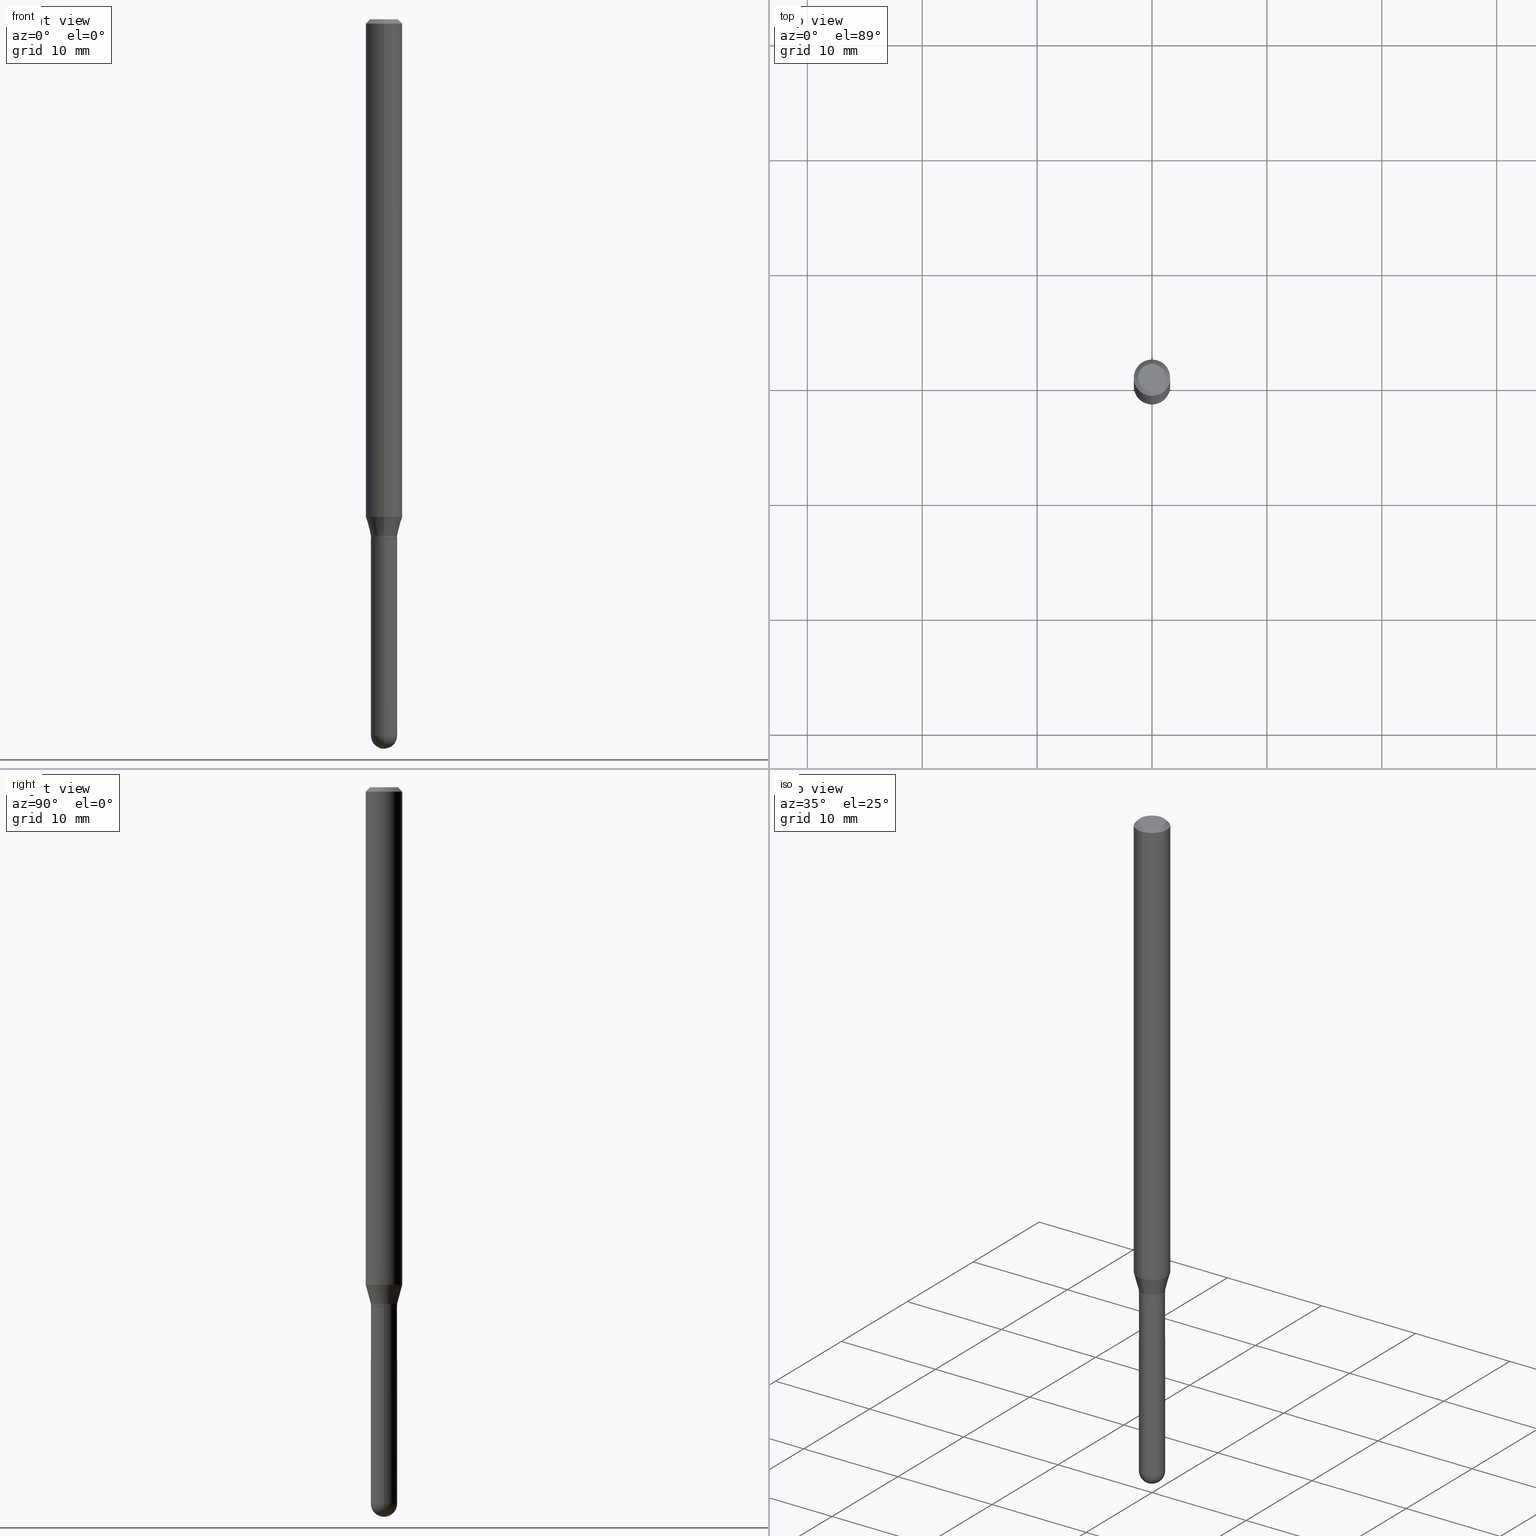
[diagram: canonical four-view strip — front | top / right | iso, engineering-drawing reading convention]
A machine part, canonical four-view strip (front | top / right | iso — engineering-drawing reading convention). The complete STEP part file that produces these views, byte-faithful:
ISO-10303-21;
HEADER;
FILE_DESCRIPTION (( 'STEP AP203' ),
    '1' );
FILE_NAME ('00999.STEP',
    '2024-03-07T19:37:29',
    ( '' ),
    ( '' ),
    'SwSTEP 2.0',
    'SolidWorks 2023',
    '' );
FILE_SCHEMA (( 'CONFIG_CONTROL_DESIGN' ));
ENDSEC;

DATA;
#1 = VERTEX_POINT ( 'NONE', #39 ) ;
#2 = CC_DESIGN_PERSON_AND_ORGANIZATION_ASSIGNMENT ( #205, #375, ( #356 ) ) ;
#3 = DIRECTION ( 'NONE',  ( -6.982962677686266711E-15, -1.000000000000000000, 3.491581986293447763E-15 ) ) ;
#4 = DIRECTION ( 'NONE',  ( -6.982962677686265922E-15, -1.000000000000000000, 3.491581986293447369E-15 ) ) ;
#5 = ADVANCED_FACE ( 'NONE', ( #226 ), #150, .F. ) ;
#6 = CIRCLE ( 'NONE', #136, 0.04449999999999999789 ) ;
#7 = LINE ( 'NONE', #360, #388 ) ;
#8 = DIRECTION ( 'NONE',  ( -1.807323732225336056E-15, -0.2588190451025190186, 0.9659258262890687563 ) ) ;
#9 = ORIENTED_EDGE ( 'NONE', *, *, #158, .F. ) ;
#10 = APPROVAL_DATE_TIME ( #398, #307 ) ;
#11 = ADVANCED_FACE ( 'NONE', ( #189 ), #270, .T. ) ;
#12 = DIRECTION ( 'NONE',  ( -2.445398524446230422E-29, 3.491581986293447369E-15, 1.000000000000000000 ) ) ;
#13 = DIRECTION ( 'NONE',  ( -4.851104656540964275E-15, -0.7071067811865500152, -0.7071067811865450192 ) ) ;
#14 = DIRECTION ( 'NONE',  ( -6.982962677686265922E-15, -1.000000000000000000, 3.491581986293447369E-15 ) ) ;
#15 = PERSON_AND_ORGANIZATION ( #448, #42 ) ;
#16 = DIRECTION ( 'NONE',  ( -6.982962677686265922E-15, -1.000000000000000000, 6.138984255425310648E-15 ) ) ;
#17 = EDGE_CURVE ( 'NONE', #337, #437, #338, .T. ) ;
#18 = CIRCLE ( 'NONE', #92, 0.04500000000000001221 ) ;
#19 = COORDINATED_UNIVERSAL_TIME_OFFSET ( 5, 0, .BEHIND. ) ;
#20 = SECURITY_CLASSIFICATION ( '', '', #182 ) ;
#21 = CARTESIAN_POINT ( 'NONE',  ( 3.316907271900976096E-16, 0.04749999999999999362, -1.702779137679096412E-16 ) ) ;
#22 = ORIENTED_EDGE ( 'NONE', *, *, #219, .T. ) ;
#23 = CARTESIAN_POINT ( 'NONE',  ( 4.328355388269827761E-29, -6.180100115739401259E-15, -1.770000000000000018 ) ) ;
#24 = COORDINATED_UNIVERSAL_TIME_OFFSET ( 5, 0, .BEHIND. ) ;
#25 = EDGE_CURVE ( 'NONE', #181, #304, #349, .T. ) ;
#26 = AXIS2_PLACEMENT_3D ( 'NONE', #492, #333, #253 ) ;
#27 = CIRCLE ( 'NONE', #465, 0.04500000000000001221 ) ;
#28 = ADVANCED_FACE ( 'NONE', ( #389 ), #391, .T. ) ;
#29 = VERTEX_POINT ( 'NONE', #312 ) ;
#30 = DIMENSIONAL_EXPONENTS ( 1.000000000000000000, 0.000000000000000000, 0.000000000000000000, 0.000000000000000000, 0.000000000000000000, 0.000000000000000000, 0.000000000000000000 ) ;
#31 = VERTEX_POINT ( 'NONE', #78 ) ;
#32 = EDGE_CURVE ( 'NONE', #385, #72, #230, .T. ) ;
#33 = CONICAL_SURFACE ( 'NONE', #319, 0.04449999999999999789, 0.7853981633969275844 ) ;
#34 = DIRECTION ( 'NONE',  ( -6.982962677686265133E-15, -1.000000000000000000, 3.491581986293447369E-15 ) ) ;
#35 = ORIENTED_EDGE ( 'NONE', *, *, #32, .F. ) ;
#36 = EDGE_LOOP ( 'NONE', ( #394, #203, #347, #296, #431 ) ) ;
#37 = VECTOR ( 'NONE', #127, 39.37007874015748143 ) ;
#38 = ADVANCED_FACE ( 'NONE', ( #40 ), #145, .T. ) ;
#39 = CARTESIAN_POINT ( 'NONE',  ( -3.107418391569952919E-16, -0.04450000000000620820, -1.780000000000000027 ) ) ;
#40 = FACE_OUTER_BOUND ( 'NONE', #44, .T. ) ;
#41 = DIRECTION ( 'NONE',  ( -6.982962677686265922E-15, -1.000000000000000000, 6.070773319253965595E-15 ) ) ;
#42 = ORGANIZATION ( 'UNSPECIFIED', 'UNSPECIFIED', '' ) ;
#43 = CARTESIAN_POINT ( 'NONE',  ( 3.197442310920897904E-16, 0.04499999999999402395, -1.770000000000000240 ) ) ;
#44 = EDGE_LOOP ( 'NONE', ( #74, #104, #472, #120 ) ) ;
#45 = APPROVAL_DATE_TIME ( #173, #195 ) ;
#46 = CYLINDRICAL_SURFACE ( 'NONE', #168, 0.04500000000000000527 ) ;
#47 = CARTESIAN_POINT ( 'NONE',  ( 0.000000000000000000, 0.000000000000000000, 0.000000000000000000 ) ) ;
#48 = CALENDAR_DATE ( 2024, 7, 3 ) ;
#49 = CARTESIAN_POINT ( 'NONE',  ( 0.000000000000000000, 0.000000000000000000, 0.000000000000000000 ) ) ;
#50 = LINE ( 'NONE', #476, #251 ) ;
#51 = PERSON_AND_ORGANIZATION ( #448, #42 ) ;
#52 = EDGE_CURVE ( 'NONE', #31, #415, #318, .T. ) ;
#53 = CIRCLE ( 'NONE', #249, 0.04749999999999999362 ) ;
#54 = AXIS2_PLACEMENT_3D ( 'NONE', #499, #301, #460 ) ;
#55 = CARTESIAN_POINT ( 'NONE',  ( 5.999777670883203691E-29, -8.577097597456086203E-15, -2.455000000000000071 ) ) ;
#56 = EDGE_LOOP ( 'NONE', ( #59, #299, #152, #357 ) ) ;
#57 = EDGE_CURVE ( 'NONE', #385, #429, #65, .T. ) ;
#58 = CARTESIAN_POINT ( 'NONE',  ( 3.197442310920445295E-16, 0.04499999999999992895, -1.571211893832048782E-16 ) ) ;
#59 = ORIENTED_EDGE ( 'NONE', *, *, #135, .F. ) ;
#60 = APPROVAL_DATE_TIME ( #498, #423 ) ;
#61 = ADVANCED_FACE ( 'NONE', ( #235 ), #46, .T. ) ;
#62 = DIRECTION ( 'NONE',  ( 6.982962677686265922E-15, 1.000000000000000000, -3.491581986293447369E-15 ) ) ;
#63 = LINE ( 'NONE', #139, #470 ) ;
#64 = ORIENTED_EDGE ( 'NONE', *, *, #311, .T. ) ;
#65 = CIRCLE ( 'NONE', #438, 0.06250000000000000000 ) ;
#66 = AXIS2_PLACEMENT_3D ( 'NONE', #23, #494, #297 ) ;
#67 = LINE ( 'NONE', #58, #471 ) ;
#68 = DIRECTION ( 'NONE',  ( -7.105427357600999492E-15, -1.000000000000000000, 0.000000000000000000 ) ) ;
#69 = ORIENTED_EDGE ( 'NONE', *, *, #488, .F. ) ;
#70 = DIRECTION ( 'NONE',  ( -2.445468806185136597E-29, 3.491481338843145583E-15, 1.000000000000000000 ) ) ;
#71 = EDGE_CURVE ( 'NONE', #352, #72, #367, .T. ) ;
#72 = VERTEX_POINT ( 'NONE', #166 ) ;
#73 = FACE_OUTER_BOUND ( 'NONE', #216, .T. ) ;
#74 = ORIENTED_EDGE ( 'NONE', *, *, #119, .T. ) ;
#75 = LOCAL_TIME ( 14, 37, 29.00000000000000000, #19 ) ;
#76 = ORIENTED_EDGE ( 'NONE', *, *, #103, .F. ) ;
#77 = FACE_OUTER_BOUND ( 'NONE', #412, .T. ) ;
#78 = CARTESIAN_POINT ( 'NONE',  ( -3.142333204958400740E-16, -0.04500000000000638212, -1.769999999999999796 ) ) ;
#79 = ADVANCED_FACE ( 'NONE', ( #326 ), #107, .T. ) ;
#80 = CARTESIAN_POINT ( 'NONE',  ( 5.999777670883203691E-29, -8.577097597456086203E-15, -2.455000000000000071 ) ) ;
#81 = AXIS2_PLACEMENT_3D ( 'NONE', #80, #229, #231 ) ;
#82 = CIRCLE ( 'NONE', #279, 0.04499999999999999833 ) ;
#83 = DIRECTION ( 'NONE',  ( -6.982962677686265922E-15, -1.000000000000000000, 4.370956789862821150E-15 ) ) ;
#84 = CARTESIAN_POINT ( 'NONE',  ( -4.364351673553916201E-16, -0.06250000000000000000, 2.182238741433404605E-16 ) ) ;
#85 = APPLICATION_PROTOCOL_DEFINITION ( 'international standard', 'config_control_design', 1994, #260 ) ;
#86 = DIRECTION ( 'NONE',  ( 6.982962677686265922E-15, 1.000000000000000000, -3.483106191921935554E-15 ) ) ;
#87 = CYLINDRICAL_SURFACE ( 'NONE', #262, 0.06250000000000000000 ) ;
#88 = ORIENTED_EDGE ( 'NONE', *, *, #462, .F. ) ;
#89 = APPLICATION_PROTOCOL_DEFINITION ( 'international standard', 'config_control_design', 1994, #143 ) ;
#90 = CIRCLE ( 'NONE', #382, 0.06250000000000000000 ) ;
#91 = CARTESIAN_POINT ( 'NONE',  ( 4.352809373514291458E-29, -6.215015935602337610E-15, -1.780000000000000471 ) ) ;
#92 = AXIS2_PLACEMENT_3D ( 'NONE', #176, #502, #335 ) ;
#93 = CARTESIAN_POINT ( 'NONE',  ( -4.364351673553497119E-16, -0.06250000000000591194, -1.704689110867545487 ) ) ;
#94 = ORIENTED_EDGE ( 'NONE', *, *, #188, .T. ) ;
#95 = CALENDAR_DATE ( 2024, 7, 3 ) ;
#96 = CC_DESIGN_PERSON_AND_ORGANIZATION_ASSIGNMENT ( #146, #417, ( #20 ) ) ;
#97 = DIRECTION ( 'NONE',  ( -6.982962677686265922E-15, -1.000000000000000000, 3.483106191921935554E-15 ) ) ;
#98 = EDGE_CURVE ( 'NONE', #137, #181, #7, .T. ) ;
#99 = AXIS2_PLACEMENT_3D ( 'NONE', #442, #359, #4 ) ;
#100 = VECTOR ( 'NONE', #246, 39.37007874015748143 ) ;
#101 = DIRECTION ( 'NONE',  ( 1.000000000000000000, -6.982962677686267499E-15, 4.876176775795935793E-29 ) ) ;
#102 = DIRECTION ( 'NONE',  ( 6.982962677686265922E-15, 1.000000000000000000, -6.070773319253920630E-15 ) ) ;
#103 = EDGE_CURVE ( 'NONE', #292, #352, #53, .T. ) ;
#104 = ORIENTED_EDGE ( 'NONE', *, *, #184, .T. ) ;
#105 = CARTESIAN_POINT ( 'NONE',  ( 6.003625919184510659E-29, -8.571586686859921733E-15, -2.455000000000000071 ) ) ;
#106 = ORIENTED_EDGE ( 'NONE', *, *, #158, .T. ) ;
#107 = CONICAL_SURFACE ( 'NONE', #212, 0.06250000000000000000, 0.7853981633974483900 ) ;
#108 = AXIS2_PLACEMENT_3D ( 'NONE', #21, #256, #62 ) ;
#109 = ORIENTED_EDGE ( 'NONE', *, *, #184, .F. ) ;
#110 = DIRECTION ( 'NONE',  ( -2.445468806185136877E-29, 3.491481338843145188E-15, 1.000000000000000000 ) ) ;
#111 = CYLINDRICAL_SURFACE ( 'NONE', #446, 0.04499999999999992895 ) ;
#112 = ADVANCED_FACE ( 'NONE', ( #330 ), #33, .T. ) ;
#113 = EDGE_LOOP ( 'NONE', ( #22, #94, #387, #124, #185 ) ) ;
#114 = CARTESIAN_POINT ( 'NONE',  ( -3.773273898774340269E-16, -0.04749999999999999362, 1.569946055109969992E-16 ) ) ;
#115 = AXIS2_PLACEMENT_3D ( 'NONE', #354, #510, #434 ) ;
#116 = DIRECTION ( 'NONE',  ( -2.445398524446230422E-29, 3.491581986293447369E-15, 1.000000000000000000 ) ) ;
#117 = APPROVAL_PERSON_ORGANIZATION ( #51, #307, #236 ) ;
#118 = ORIENTED_EDGE ( 'NONE', *, *, #504, .T. ) ;
#119 = EDGE_CURVE ( 'NONE', #1, #314, #6, .T. ) ;
#120 = ORIENTED_EDGE ( 'NONE', *, *, #311, .F. ) ;
#121 = ORIENTED_EDGE ( 'NONE', *, *, #488, .T. ) ;
#122 = AXIS2_PLACEMENT_3D ( 'NONE', #55, #215, #102 ) ;
#123 = DIRECTION ( 'NONE',  ( -6.982962677686265922E-15, -1.000000000000000000, 6.138984255425310648E-15 ) ) ;
#124 = ORIENTED_EDGE ( 'NONE', *, *, #98, .F. ) ;
#125 = CYLINDRICAL_SURFACE ( 'NONE', #507, 0.06250000000000000000 ) ;
#126 = ORIENTED_EDGE ( 'NONE', *, *, #219, .F. ) ;
#127 = DIRECTION ( 'NONE',  ( -2.445398524446230422E-29, 3.491581986293447369E-15, 1.000000000000000000 ) ) ;
#128 = DIRECTION ( 'NONE',  ( -6.982962677686266711E-15, -1.000000000000000000, 6.070773319253891442E-15 ) ) ;
#129 = CLOSED_SHELL ( 'NONE', ( #370, #38, #428, #445, #436, #451, #379, #79, #206, #511, #112, #11 ) ) ;
#130 = DIRECTION ( 'NONE',  ( 2.445398524446230422E-29, -3.491581986293447369E-15, -1.000000000000000000 ) ) ;
#131 = CONICAL_SURFACE ( 'NONE', #194, 0.04500000000000019956, 0.2617993877991511287 ) ;
#132 = FACE_OUTER_BOUND ( 'NONE', #334, .T. ) ;
#133 = EDGE_CURVE ( 'NONE', #316, #200, #495, .T. ) ;
#134 = CARTESIAN_POINT ( 'NONE',  ( 4.352809373514291458E-29, -6.215015935602337610E-15, -1.780000000000000471 ) ) ;
#135 = EDGE_CURVE ( 'NONE', #337, #29, #400, .T. ) ;
#136 = AXIS2_PLACEMENT_3D ( 'NONE', #134, #475, #123 ) ;
#137 = VERTEX_POINT ( 'NONE', #213 ) ;
#138 = LOCAL_TIME ( 14, 37, 29.00000000000000000, #478 ) ;
#139 = CARTESIAN_POINT ( 'NONE',  ( -3.142333204958814399E-16, -0.04499999999999992895, 1.571211893832048782E-16 ) ) ;
#140 = ORIENTED_EDGE ( 'NONE', *, *, #462, .T. ) ;
#141 = CYLINDRICAL_SURFACE ( 'NONE', #241, 0.04500000000000000527 ) ;
#142 = LINE ( 'NONE', #266, #313 ) ;
#143 = APPLICATION_CONTEXT ( 'configuration controlled 3d designs of mechanical parts and assemblies' ) ;
#144 = ORIENTED_EDGE ( 'NONE', *, *, #119, .F. ) ;
#145 = CONICAL_SURFACE ( 'NONE', #153, 0.04449999999999999789, 0.7853981633969275844 ) ;
#146 = PERSON_AND_ORGANIZATION ( #448, #42 ) ;
#147 = CIRCLE ( 'NONE', #395, 0.06250000000000000000 ) ;
#148 = CARTESIAN_POINT ( 'NONE',  ( 6.003625919184510659E-29, -8.571586686859921733E-15, -2.455000000000000071 ) ) ;
#149 = CARTESIAN_POINT ( 'NONE',  ( 4.352934475009543120E-29, -6.214836783140799618E-15, -1.780000000000000027 ) ) ;
#150 = PLANE ( 'NONE',  #506 ) ;
#151 = CARTESIAN_POINT ( 'NONE',  ( 4.352934475009543120E-29, -6.214836783140799618E-15, -1.780000000000000027 ) ) ;
#152 = ORIENTED_EDGE ( 'NONE', *, *, #267, .F. ) ;
#153 = AXIS2_PLACEMENT_3D ( 'NONE', #91, #402, #16 ) ;
#154 = CARTESIAN_POINT ( 'NONE',  ( 4.351586674252067516E-29, -6.213270144609190477E-15, -1.779500000000000304 ) ) ;
#155 = CIRCLE ( 'NONE', #54, 0.04749999999999999362 ) ;
#156 = ORIENTED_EDGE ( 'NONE', *, *, #339, .T. ) ;
#157 = ORIENTED_EDGE ( 'NONE', *, *, #432, .T. ) ;
#158 = EDGE_CURVE ( 'NONE', #316, #31, #63, .T. ) ;
#159 = DIRECTION ( 'NONE',  ( -6.982962677686265922E-15, -1.000000000000000000, 6.138984255425310648E-15 ) ) ;
#160 = DIRECTION ( 'NONE',  ( -6.982962677686266711E-15, -1.000000000000000000, 6.070773319253891442E-15 ) ) ;
#161 = CONICAL_SURFACE ( 'NONE', #214, 0.04500000000000019956, 0.2617993877991511287 ) ;
#162 = DIRECTION ( 'NONE',  ( -2.445398524446230422E-29, 3.491581986293447369E-15, 1.000000000000000000 ) ) ;
#163 = EDGE_LOOP ( 'NONE', ( #362, #234, #106, #443 ) ) ;
#164 = ORIENTED_EDGE ( 'NONE', *, *, #258, .T. ) ;
#165 = EDGE_CURVE ( 'NONE', #314, #1, #240, .T. ) ;
#166 = CARTESIAN_POINT ( 'NONE',  ( -4.364351673553912750E-16, -0.06250000000000005551, -0.01499999999999979128 ) ) ;
#167 = CARTESIAN_POINT ( 'NONE',  ( 3.668097786669347876E-31, -5.237372979440174110E-17, -0.01500000000000000812 ) ) ;
#168 = AXIS2_PLACEMENT_3D ( 'NONE', #49, #169, #208 ) ;
#169 = DIRECTION ( 'NONE',  ( -2.445468806185136597E-29, 3.491481338843145583E-15, 1.000000000000000000 ) ) ;
#170 = CIRCLE ( 'NONE', #305, 0.04500000000000001221 ) ;
#171 = EDGE_CURVE ( 'NONE', #343, #72, #90, .T. ) ;
#172 = DIRECTION ( 'NONE',  ( -6.982962677686265922E-15, -1.000000000000000000, 6.070773319253965595E-15 ) ) ;
#173 = DATE_AND_TIME ( #95, #75 ) ;
#174 = CARTESIAN_POINT ( 'NONE',  ( 5.999777670883203691E-29, -8.577097597456086203E-15, -2.455000000000000071 ) ) ;
#175 = ADVANCED_FACE ( 'NONE', ( #250 ), #295, .T. ) ;
#176 = CARTESIAN_POINT ( 'NONE',  ( 6.003625919184510659E-29, -8.571586686859921733E-15, -2.455000000000000071 ) ) ;
#177 = CARTESIAN_POINT ( 'NONE',  ( 0.000000000000000000, 0.000000000000000000, 0.000000000000000000 ) ) ;
#178 = AXIS2_PLACEMENT_3D ( 'NONE', #174, #342, #68 ) ;
#179 = VERTEX_POINT ( 'NONE', #257 ) ;
#180 = CC_DESIGN_APPROVAL ( #307, ( #340 ) ) ;
#181 = VERTEX_POINT ( 'NONE', #410 ) ;
#182 = SECURITY_CLASSIFICATION_LEVEL ( 'unclassified' ) ;
#183 = CARTESIAN_POINT ( 'NONE',  ( 3.197442310920869307E-16, 0.04499999999999355210, -1.779500000000000526 ) ) ;
#184 = EDGE_CURVE ( 'NONE', #314, #200, #220, .T. ) ;
#185 = ORIENTED_EDGE ( 'NONE', *, *, #267, .T. ) ;
#186 = PERSON_AND_ORGANIZATION ( #448, #42 ) ;
#187 = ORIENTED_EDGE ( 'NONE', *, *, #191, .T. ) ;
#188 = EDGE_CURVE ( 'NONE', #179, #304, #142, .T. ) ;
#189 = FACE_OUTER_BOUND ( 'NONE', #163, .T. ) ;
#190 = DIRECTION ( 'NONE',  ( -2.445398524446230422E-29, 3.491581986293447369E-15, 1.000000000000000000 ) ) ;
#191 = EDGE_CURVE ( 'NONE', #200, #415, #67, .T. ) ;
#192 = ORIENTED_EDGE ( 'NONE', *, *, #432, .F. ) ;
#193 = EDGE_LOOP ( 'NONE', ( #254, #76, #157, #369 ) ) ;
#194 = AXIS2_PLACEMENT_3D ( 'NONE', #403, #12, #128 ) ;
#195 = APPROVAL ( #408, 'UNSPECIFIED' ) ;
#196 = CARTESIAN_POINT ( 'NONE',  ( 4.168644236355052807E-29, -5.952061791735716845E-15, -1.704689110867545931 ) ) ;
#197 = FACE_OUTER_BOUND ( 'NONE', #425, .T. ) ;
#198 = DIRECTION ( 'NONE',  ( -6.982962677686266711E-15, -1.000000000000000000, 6.070773319253891442E-15 ) ) ;
#199 = LINE ( 'NONE', #242, #430 ) ;
#200 = VERTEX_POINT ( 'NONE', #183 ) ;
#201 = EDGE_CURVE ( 'NONE', #29, #137, #27, .T. ) ;
#202 = AXIS2_PLACEMENT_3D ( 'NONE', #167, #323, #281 ) ;
#203 = ORIENTED_EDGE ( 'NONE', *, *, #264, .T. ) ;
#204 = UNCERTAINTY_MEASURE_WITH_UNIT (LENGTH_MEASURE( 1.000000000000000082E-05 ), #221, 'distance_accuracy_value', 'NONE');
#205 = PERSON_AND_ORGANIZATION ( #448, #42 ) ;
#206 = ADVANCED_FACE ( 'NONE', ( #346 ), #414, .F. ) ;
#207 = DIRECTION ( 'NONE',  ( 0.000000000000000000, 0.000000000000000000, 1.000000000000000000 ) ) ;
#208 = DIRECTION ( 'NONE',  ( 1.000000000000000000, -6.982962677686267499E-15, 4.876176775795935793E-29 ) ) ;
#209 = FACE_OUTER_BOUND ( 'NONE', #455, .T. ) ;
#210 = DIRECTION ( 'NONE',  ( -2.445398524446230422E-29, 3.491581986293447369E-15, 1.000000000000000000 ) ) ;
#211 = CARTESIAN_POINT ( 'NONE',  ( 4.440892098501044258E-16, 0.06249999999999408112, -1.704689110867546153 ) ) ;
#212 = AXIS2_PLACEMENT_3D ( 'NONE', #481, #130, #86 ) ;
#213 = CARTESIAN_POINT ( 'NONE',  ( 0.04500000000000001221, -7.707445055496241968E-15, -2.455000000000000071 ) ) ;
#214 = AXIS2_PLACEMENT_3D ( 'NONE', #237, #317, #160 ) ;
#215 = DIRECTION ( 'NONE',  ( -1.000000000000000000, 6.982962677686265922E-15, -4.883557194083112340E-29 ) ) ;
#216 = EDGE_LOOP ( 'NONE', ( #393, #187, #252, #9 ) ) ;
#217 = ORIENTED_EDGE ( 'NONE', *, *, #298, .F. ) ;
#218 = DIRECTION ( 'NONE',  ( -2.445398524446230422E-29, 3.491581986293447369E-15, 1.000000000000000000 ) ) ;
#219 = EDGE_CURVE ( 'NONE', #437, #179, #18, .T. ) ;
#220 = LINE ( 'NONE', #341, #496 ) ;
#221 =( CONVERSION_BASED_UNIT ( 'INCH', #490 ) LENGTH_UNIT ( ) NAMED_UNIT ( #30 ) );
#222 = CIRCLE ( 'NONE', #287, 0.04500000000000001221 ) ;
#223 = EDGE_LOOP ( 'NONE', ( #224, #275 ) ) ;
#224 = ORIENTED_EDGE ( 'NONE', *, *, #25, .T. ) ;
#225 = DATE_TIME_ROLE ( 'classification_date' ) ;
#226 = FACE_OUTER_BOUND ( 'NONE', #223, .T. ) ;
#227 =( GEOMETRIC_REPRESENTATION_CONTEXT ( 3 ) GLOBAL_UNCERTAINTY_ASSIGNED_CONTEXT ( ( #204 ) ) GLOBAL_UNIT_ASSIGNED_CONTEXT ( ( #221, #420, #336 ) ) REPRESENTATION_CONTEXT ( 'NONE', 'WORKASPACE' ) );
#228 = CC_DESIGN_APPROVAL ( #423, ( #20 ) ) ;
#229 = DIRECTION ( 'NONE',  ( 1.000000000000000000, -6.982962677686265922E-15, 4.883557194083112340E-29 ) ) ;
#230 = LINE ( 'NONE', #84, #37 ) ;
#231 = DIRECTION ( 'NONE',  ( 6.982962677686265133E-15, 1.000000000000000000, 0.000000000000000000 ) ) ;
#232 = AXIS2_PLACEMENT_3D ( 'NONE', #277, #508, #273 ) ;
#233 = VECTOR ( 'NONE', #384, 39.37007874015748143 ) ;
#234 = ORIENTED_EDGE ( 'NONE', *, *, #298, .T. ) ;
#235 = FACE_OUTER_BOUND ( 'NONE', #36, .T. ) ;
#236 = APPROVAL_ROLE ( '' ) ;
#237 = CARTESIAN_POINT ( 'NONE',  ( 4.328355388269827761E-29, -6.180100115739401259E-15, -1.770000000000000018 ) ) ;
#238 = ORIENTED_EDGE ( 'NONE', *, *, #71, .T. ) ;
#239 = CC_DESIGN_PERSON_AND_ORGANIZATION_ASSIGNMENT ( #247, #484, ( #463 ) ) ;
#240 = CIRCLE ( 'NONE', #26, 0.04449999999999999789 ) ;
#241 = AXIS2_PLACEMENT_3D ( 'NONE', #248, #491, #101 ) ;
#242 = CARTESIAN_POINT ( 'NONE',  ( 4.364351673553919652E-16, 0.06249999999999995143, -0.01500000000000022669 ) ) ;
#243 = APPROVAL_STATUS ( 'not_yet_approved' ) ;
#244 = MANIFOLD_SOLID_BREP ( 'Body-Move/Copy2[2]', #129 ) ;
#245 = CARTESIAN_POINT ( 'NONE',  ( 2.165532160747907297E-46, -3.091983988547946782E-32, -8.855538837941761835E-18 ) ) ;
#246 = DIRECTION ( 'NONE',  ( 1.839019923739606232E-15, 0.2588190451025257910, 0.9659258262890669799 ) ) ;
#247 = PERSON_AND_ORGANIZATION ( #448, #42 ) ;
#248 = CARTESIAN_POINT ( 'NONE',  ( 0.000000000000000000, 0.000000000000000000, 0.000000000000000000 ) ) ;
#249 = AXIS2_PLACEMENT_3D ( 'NONE', #245, #210, #3 ) ;
#250 = FACE_OUTER_BOUND ( 'NONE', #459, .T. ) ;
#251 = VECTOR ( 'NONE', #325, 39.37007874015748143 ) ;
#252 = ORIENTED_EDGE ( 'NONE', *, *, #52, .F. ) ;
#253 = DIRECTION ( 'NONE',  ( -6.982962677686265922E-15, -1.000000000000000000, 6.138984255425310648E-15 ) ) ;
#254 = ORIENTED_EDGE ( 'NONE', *, *, #71, .F. ) ;
#255 = APPROVAL_STATUS ( 'not_yet_approved' ) ;
#256 = DIRECTION ( 'NONE',  ( 2.445398524446230142E-29, -3.491581986293447369E-15, -1.000000000000000000 ) ) ;
#257 = CARTESIAN_POINT ( 'NONE',  ( -0.04500000000000001221, -7.073467503908314913E-15, -2.455000000000000071 ) ) ;
#258 = EDGE_CURVE ( 'NONE', #352, #292, #155, .T. ) ;
#259 = DIRECTION ( 'NONE',  ( -2.445468806185136597E-29, 3.491481338843145583E-15, 1.000000000000000000 ) ) ;
#260 = APPLICATION_CONTEXT ( 'configuration controlled 3d designs of mechanical parts and assemblies' ) ;
#261 = ORIENTED_EDGE ( 'NONE', *, *, #374, .T. ) ;
#262 = AXIS2_PLACEMENT_3D ( 'NONE', #47, #289, #327 ) ;
#263 = SHAPE_DEFINITION_REPRESENTATION ( #427, #486 ) ;
#264 = EDGE_CURVE ( 'NONE', #179, #29, #222, .T. ) ;
#265 = ORIENTED_EDGE ( 'NONE', *, *, #479, .T. ) ;
#266 = CARTESIAN_POINT ( 'NONE',  ( -0.04500000000000000527, 3.197442310920451211E-16, -2.213520790614707910E-30 ) ) ;
#267 = EDGE_CURVE ( 'NONE', #137, #437, #170, .T. ) ;
#268 = ORIENTED_EDGE ( 'NONE', *, *, #374, .F. ) ;
#269 = DIRECTION ( 'NONE',  ( -2.445398524446230422E-29, 3.491581986293447369E-15, 1.000000000000000000 ) ) ;
#270 = CYLINDRICAL_SURFACE ( 'NONE', #232, 0.04499999999999992895 ) ;
#271 = AXIS2_PLACEMENT_3D ( 'NONE', #280, #322, #41 ) ;
#272 = CARTESIAN_POINT ( 'NONE',  ( 3.668097786669347876E-31, -5.237372979440174110E-17, -0.01500000000000000812 ) ) ;
#273 = DIRECTION ( 'NONE',  ( -6.982962677686265133E-15, -1.000000000000000000, 3.491581986293447369E-15 ) ) ;
#274 = CARTESIAN_POINT ( 'NONE',  ( 0.000000000000000000, 0.000000000000000000, 0.000000000000000000 ) ) ;
#275 = ORIENTED_EDGE ( 'NONE', *, *, #282, .T. ) ;
#276 = CC_DESIGN_PERSON_AND_ORGANIZATION_ASSIGNMENT ( #324, #381, ( #340 ) ) ;
#277 = CARTESIAN_POINT ( 'NONE',  ( 0.000000000000000000, 0.000000000000000000, 0.000000000000000000 ) ) ;
#278 = CARTESIAN_POINT ( 'NONE',  ( 4.168644236355052807E-29, -5.952061791735716845E-15, -1.704689110867545931 ) ) ;
#279 = AXIS2_PLACEMENT_3D ( 'NONE', #151, #396, #433 ) ;
#280 = CARTESIAN_POINT ( 'NONE',  ( 4.351586674252067516E-29, -6.213270144609190477E-15, -1.779500000000000304 ) ) ;
#281 = DIRECTION ( 'NONE',  ( 6.982962677686265922E-15, 1.000000000000000000, -3.483106191921935554E-15 ) ) ;
#282 = EDGE_CURVE ( 'NONE', #304, #181, #82, .T. ) ;
#283 = DIRECTION ( 'NONE',  ( -2.445398524446230422E-29, 3.491581986293447369E-15, 1.000000000000000000 ) ) ;
#284 = DIRECTION ( 'NONE',  ( -6.982962677686265922E-15, -1.000000000000000000, 4.370956789862821150E-15 ) ) ;
#285 = PLANE ( 'NONE',  #99 ) ;
#286 = ORIENTED_EDGE ( 'NONE', *, *, #165, .T. ) ;
#287 = AXIS2_PLACEMENT_3D ( 'NONE', #105, #259, #303 ) ;
#288 = DIRECTION ( 'NONE',  ( -2.445468806185136877E-29, 3.491481338843145188E-15, 1.000000000000000000 ) ) ;
#289 = DIRECTION ( 'NONE',  ( -2.445398524446230422E-29, 3.491581986293447369E-15, 1.000000000000000000 ) ) ;
#290 = FACE_OUTER_BOUND ( 'NONE', #113, .T. ) ;
#291 = DIRECTION ( 'NONE',  ( -2.445398524446230422E-29, 3.491581986293447369E-15, 1.000000000000000000 ) ) ;
#292 = VERTEX_POINT ( 'NONE', #310 ) ;
#293 = COORDINATED_UNIVERSAL_TIME_OFFSET ( 5, 0, .BEHIND. ) ;
#294 = APPROVAL_PERSON_ORGANIZATION ( #15, #195, #365 ) ;
#295 = SPHERICAL_SURFACE ( 'NONE', #122, 0.04499999999999998446 ) ;
#296 = ORIENTED_EDGE ( 'NONE', *, *, #98, .T. ) ;
#297 = DIRECTION ( 'NONE',  ( -6.982962677686266711E-15, -1.000000000000000000, 6.070773319253891442E-15 ) ) ;
#298 = EDGE_CURVE ( 'NONE', #200, #316, #351, .T. ) ;
#299 = ORIENTED_EDGE ( 'NONE', *, *, #17, .T. ) ;
#300 = PERSON_AND_ORGANIZATION_ROLE ( 'design_supplier' ) ;
#301 = DIRECTION ( 'NONE',  ( -2.445398524446230422E-29, 3.491581986293447369E-15, 1.000000000000000000 ) ) ;
#302 = ORIENTED_EDGE ( 'NONE', *, *, #171, .F. ) ;
#303 = DIRECTION ( 'NONE',  ( 1.000000000000000000, -6.982962677686266711E-15, 0.000000000000000000 ) ) ;
#304 = VERTEX_POINT ( 'NONE', #422 ) ;
#305 = AXIS2_PLACEMENT_3D ( 'NONE', #464, #70, #315 ) ;
#306 = DIRECTION ( 'NONE',  ( 1.000000000000000000, -6.982962677686266711E-15, 0.000000000000000000 ) ) ;
#307 = APPROVAL ( #243, 'UNSPECIFIED' ) ;
#308 = DIRECTION ( 'NONE',  ( -2.445468806185136597E-29, 3.491481338843145583E-15, 1.000000000000000000 ) ) ;
#309 = CARTESIAN_POINT ( 'NONE',  ( 3.142333204959255175E-16, 0.04499999999999378109, -1.780000000000000471 ) ) ;
#310 = CARTESIAN_POINT ( 'NONE',  ( 3.840629472727447874E-16, 0.04749999999999999362, -1.747056831868805136E-16 ) ) ;
#311 = EDGE_CURVE ( 'NONE', #1, #316, #456, .T. ) ;
#312 = CARTESIAN_POINT ( 'NONE',  ( -3.197442310919850198E-16, -0.04500000000000856787, -2.454999999999999627 ) ) ;
#313 = VECTOR ( 'NONE', #110, 39.37007874015748143 ) ;
#314 = VERTEX_POINT ( 'NONE', #386 ) ;
#315 = DIRECTION ( 'NONE',  ( 1.000000000000000000, -6.982962677686266711E-15, 0.000000000000000000 ) ) ;
#316 = VERTEX_POINT ( 'NONE', #344 ) ;
#317 = DIRECTION ( 'NONE',  ( -2.445398524446230422E-29, 3.491581986293447369E-15, 1.000000000000000000 ) ) ;
#318 = CIRCLE ( 'NONE', #454, 0.04500000000000019956 ) ;
#319 = AXIS2_PLACEMENT_3D ( 'NONE', #485, #162, #159 ) ;
#320 = CIRCLE ( 'NONE', #390, 0.06250000000000000000 ) ;
#321 = ADVANCED_FACE ( 'NONE', ( #290 ), #141, .T. ) ;
#322 = DIRECTION ( 'NONE',  ( -2.445398524446230422E-29, 3.491581986293447369E-15, 1.000000000000000000 ) ) ;
#323 = DIRECTION ( 'NONE',  ( 2.445398524446230422E-29, -3.491581986293447369E-15, -1.000000000000000000 ) ) ;
#324 = PERSON_AND_ORGANIZATION ( #448, #42 ) ;
#325 = DIRECTION ( 'NONE',  ( -2.445398524446230422E-29, 3.491581986293447369E-15, 1.000000000000000000 ) ) ;
#326 = FACE_OUTER_BOUND ( 'NONE', #193, .T. ) ;
#327 = DIRECTION ( 'NONE',  ( -6.982962677686265922E-15, -1.000000000000000000, 3.491581986293447369E-15 ) ) ;
#328 = AXIS2_PLACEMENT_3D ( 'NONE', #177, #207, #447 ) ;
#329 = APPROVAL_PERSON_ORGANIZATION ( #186, #423, #413 ) ;
#330 = FACE_OUTER_BOUND ( 'NONE', #350, .T. ) ;
#331 =( LENGTH_UNIT ( ) NAMED_UNIT ( * ) SI_UNIT ( $, .METRE. ) );
#332 = PRODUCT_RELATED_PRODUCT_CATEGORY ( 'detail', '', ( #463 ) ) ;
#333 = DIRECTION ( 'NONE',  ( -2.445398524446230422E-29, 3.491581986293447369E-15, 1.000000000000000000 ) ) ;
#334 = EDGE_LOOP ( 'NONE', ( #453, #121, #268, #35 ) ) ;
#335 = DIRECTION ( 'NONE',  ( 1.000000000000000000, -6.982962677686266711E-15, 0.000000000000000000 ) ) ;
#336 =( NAMED_UNIT ( * ) SI_UNIT ( $, .STERADIAN. ) SOLID_ANGLE_UNIT ( ) );
#337 = VERTEX_POINT ( 'NONE', #377 ) ;
#338 = CIRCLE ( 'NONE', #81, 0.04499999999999998446 ) ;
#339 = EDGE_CURVE ( 'NONE', #415, #31, #372, .T. ) ;
#340 = PRODUCT_DEFINITION_FORMATION_WITH_SPECIFIED_SOURCE ( 'ANY', '', #463, .NOT_KNOWN. ) ;
#341 = CARTESIAN_POINT ( 'NONE',  ( 3.161915174132880537E-16, 0.04449999999999378064, -1.780000000000000693 ) ) ;
#342 = DIRECTION ( 'NONE',  ( -1.000000000000000000, 7.105427357601001070E-15, -4.926315508542082329E-29 ) ) ;
#343 = VERTEX_POINT ( 'NONE', #355 ) ;
#344 = CARTESIAN_POINT ( 'NONE',  ( -3.142333204958351929E-16, -0.04500000000000574374, -1.779499999999999860 ) ) ;
#345 = CALENDAR_DATE ( 2024, 7, 3 ) ;
#346 = FACE_OUTER_BOUND ( 'NONE', #497, .T. ) ;
#347 = ORIENTED_EDGE ( 'NONE', *, *, #201, .T. ) ;
#348 = CC_DESIGN_DATE_AND_TIME_ASSIGNMENT ( #378, #225, ( #20 ) ) ;
#349 = CIRCLE ( 'NONE', #483, 0.04499999999999999833 ) ;
#350 = EDGE_LOOP ( 'NONE', ( #109, #286, #64, #217 ) ) ;
#351 = CIRCLE ( 'NONE', #383, 0.04499999999999965139 ) ;
#352 = VERTEX_POINT ( 'NONE', #114 ) ;
#353 = DIRECTION ( 'NONE',  ( -6.982962677686265922E-15, -1.000000000000000000, 3.483106191921935554E-15 ) ) ;
#354 = CARTESIAN_POINT ( 'NONE',  ( 5.999777670883203691E-29, -8.577097597456086203E-15, -2.455000000000000071 ) ) ;
#355 = CARTESIAN_POINT ( 'NONE',  ( 4.440892098501046230E-16, 0.06249999999999995143, -0.01500000000000022669 ) ) ;
#356 = PRODUCT_DEFINITION ( 'UNKNOWN', '', #340, #426 ) ;
#357 = ORIENTED_EDGE ( 'NONE', *, *, #201, .F. ) ;
#358 = ORIENTED_EDGE ( 'NONE', *, *, #264, .F. ) ;
#359 = DIRECTION ( 'NONE',  ( -2.445398524446230142E-29, 3.491581986293447369E-15, 1.000000000000000000 ) ) ;
#360 = CARTESIAN_POINT ( 'NONE',  ( 0.04500000000000000527, -3.142333204958820809E-16, 2.194279549108171317E-30 ) ) ;
#361 = LINE ( 'NONE', #43, #100 ) ;
#362 = ORIENTED_EDGE ( 'NONE', *, *, #191, .F. ) ;
#363 = CLOSED_SHELL ( 'NONE', ( #321, #175, #5, #28, #61 ) ) ;
#364 = CC_DESIGN_APPROVAL ( #195, ( #356 ) ) ;
#365 = APPROVAL_ROLE ( '' ) ;
#366 = CARTESIAN_POINT ( 'NONE',  ( -3.142333204958400740E-16, -0.04500000000000638212, -1.769999999999999796 ) ) ;
#367 = LINE ( 'NONE', #405, #444 ) ;
#368 = CARTESIAN_POINT ( 'NONE',  ( 3.142333204959419850E-16, 0.04499999999999142880, -2.455000000000000071 ) ) ;
#369 = ORIENTED_EDGE ( 'NONE', *, *, #171, .T. ) ;
#370 = ADVANCED_FACE ( 'NONE', ( #73 ), #111, .T. ) ;
#371 = DIRECTION ( 'NONE',  ( -2.445398524446230422E-29, 3.491581986293447369E-15, 1.000000000000000000 ) ) ;
#372 = CIRCLE ( 'NONE', #66, 0.04500000000000019956 ) ;
#373 = DIRECTION ( 'NONE',  ( -2.445398524446230422E-29, 3.491581986293447369E-15, 1.000000000000000000 ) ) ;
#374 = EDGE_CURVE ( 'NONE', #72, #343, #147, .T. ) ;
#375 = PERSON_AND_ORGANIZATION_ROLE ( 'creator' ) ;
#376 = ORIENTED_EDGE ( 'NONE', *, *, #258, .F. ) ;
#377 = CARTESIAN_POINT ( 'NONE',  ( 6.111747891312188568E-29, -8.731458802405945600E-15, -2.500000000000000000 ) ) ;
#378 = DATE_AND_TIME ( #345, #466 ) ;
#379 = ADVANCED_FACE ( 'NONE', ( #77 ), #125, .T. ) ;
#380 = ORIENTED_EDGE ( 'NONE', *, *, #57, .F. ) ;
#381 = PERSON_AND_ORGANIZATION_ROLE ( 'creator' ) ;
#382 = AXIS2_PLACEMENT_3D ( 'NONE', #489, #291, #97 ) ;
#383 = AXIS2_PLACEMENT_3D ( 'NONE', #154, #116, #172 ) ;
#384 = DIRECTION ( 'NONE',  ( -4.937700262161976356E-15, -0.7071067811861768693, 0.7071067811869181652 ) ) ;
#385 = VERTEX_POINT ( 'NONE', #93 ) ;
#386 = CARTESIAN_POINT ( 'NONE',  ( 3.179678742526874676E-16, 0.04449999999999378064, -1.780000000000000693 ) ) ;
#387 = ORIENTED_EDGE ( 'NONE', *, *, #25, .F. ) ;
#388 = VECTOR ( 'NONE', #288, 39.37007874015748143 ) ;
#389 = FACE_OUTER_BOUND ( 'NONE', #56, .T. ) ;
#390 = AXIS2_PLACEMENT_3D ( 'NONE', #278, #397, #83 ) ;
#391 = SPHERICAL_SURFACE ( 'NONE', #115, 0.04499999999999998446 ) ;
#392 = CC_DESIGN_PERSON_AND_ORGANIZATION_ASSIGNMENT ( #457, #300, ( #340 ) ) ;
#393 = ORIENTED_EDGE ( 'NONE', *, *, #133, .T. ) ;
#394 = ORIENTED_EDGE ( 'NONE', *, *, #188, .F. ) ;
#395 = AXIS2_PLACEMENT_3D ( 'NONE', #272, #190, #353 ) ;
#396 = DIRECTION ( 'NONE',  ( -2.445468806185136597E-29, 3.491481338843145583E-15, 1.000000000000000000 ) ) ;
#397 = DIRECTION ( 'NONE',  ( -2.445398524446230422E-29, 3.491581986293447369E-15, 1.000000000000000000 ) ) ;
#398 = DATE_AND_TIME ( #48, #401 ) ;
#399 = CARTESIAN_POINT ( 'NONE',  ( 4.328355388269827761E-29, -6.180100115739401259E-15, -1.770000000000000018 ) ) ;
#400 = CIRCLE ( 'NONE', #178, 0.04499999999999998446 ) ;
#401 = LOCAL_TIME ( 14, 37, 29.00000000000000000, #404 ) ;
#402 = DIRECTION ( 'NONE',  ( -2.445398524446230422E-29, 3.491581986293447369E-15, 1.000000000000000000 ) ) ;
#403 = CARTESIAN_POINT ( 'NONE',  ( 4.328355388269827761E-29, -6.180100115739401259E-15, -1.770000000000000018 ) ) ;
#404 = COORDINATED_UNIVERSAL_TIME_OFFSET ( 5, 0, .BEHIND. ) ;
#405 = CARTESIAN_POINT ( 'NONE',  ( -4.287811248607203282E-16, -0.06250000000000005551, -0.01499999999999979128 ) ) ;
#406 = LINE ( 'NONE', #366, #477 ) ;
#407 = DATE_TIME_ROLE ( 'creation_date' ) ;
#408 = APPROVAL_STATUS ( 'not_yet_approved' ) ;
#409 = CC_DESIGN_SECURITY_CLASSIFICATION ( #20, ( #340 ) ) ;
#410 = CARTESIAN_POINT ( 'NONE',  ( 0.04499999999999999833, -6.529070103636681305E-15, -1.780000000000000027 ) ) ;
#411 = ORIENTED_EDGE ( 'NONE', *, *, #479, .F. ) ;
#412 = EDGE_LOOP ( 'NONE', ( #69, #118, #512, #302 ) ) ;
#413 = APPROVAL_ROLE ( '' ) ;
#414 = PLANE ( 'NONE',  #108 ) ;
#415 = VERTEX_POINT ( 'NONE', #441 ) ;
#416 = CARTESIAN_POINT ( 'NONE',  ( -3.107418391569952919E-16, -0.04450000000000620820, -1.780000000000000027 ) ) ;
#417 = PERSON_AND_ORGANIZATION_ROLE ( 'classification_officer' ) ;
#418 = CONICAL_SURFACE ( 'NONE', #202, 0.06250000000000000000, 0.7853981633974483900 ) ;
#419 = LOCAL_TIME ( 14, 37, 29.00000000000000000, #24 ) ;
#420 =( NAMED_UNIT ( * ) PLANE_ANGLE_UNIT ( ) SI_UNIT ( $, .RADIAN. ) );
#421 = ORIENTED_EDGE ( 'NONE', *, *, #504, .F. ) ;
#422 = CARTESIAN_POINT ( 'NONE',  ( -0.04499999999999999833, -7.073467503908314913E-15, -1.780000000000000027 ) ) ;
#423 = APPROVAL ( #255, 'UNSPECIFIED' ) ;
#424 = MANIFOLD_SOLID_BREP ( 'Body-Move/Copy2[1]', #363 ) ;
#425 = EDGE_LOOP ( 'NONE', ( #144, #467 ) ) ;
#426 = DESIGN_CONTEXT ( 'detailed design', #260, 'design' ) ;
#427 = PRODUCT_DEFINITION_SHAPE ( 'NONE', 'NONE',  #356 ) ;
#428 = ADVANCED_FACE ( 'NONE', ( #474 ), #418, .T. ) ;
#429 = VERTEX_POINT ( 'NONE', #211 ) ;
#430 = VECTOR ( 'NONE', #482, 39.37007874015748143 ) ;
#431 = ORIENTED_EDGE ( 'NONE', *, *, #282, .F. ) ;
#432 = EDGE_CURVE ( 'NONE', #292, #343, #199, .T. ) ;
#433 = DIRECTION ( 'NONE',  ( 1.000000000000000000, -6.982962677686269077E-15, 0.000000000000000000 ) ) ;
#434 = DIRECTION ( 'NONE',  ( 6.982962677686265922E-15, 1.000000000000000000, -6.070773319253920630E-15 ) ) ;
#435 = DIRECTION ( 'NONE',  ( -1.000000000000000000, 6.982962677686265922E-15, -4.876176775795935793E-29 ) ) ;
#436 = ADVANCED_FACE ( 'NONE', ( #209 ), #131, .T. ) ;
#437 = VERTEX_POINT ( 'NONE', #368 ) ;
#438 = AXIS2_PLACEMENT_3D ( 'NONE', #196, #440, #284 ) ;
#439 = CARTESIAN_POINT ( 'NONE',  ( 0.000000000000000000, 0.000000000000000000, 0.000000000000000000 ) ) ;
#440 = DIRECTION ( 'NONE',  ( -2.445398524446230422E-29, 3.491581986293447369E-15, 1.000000000000000000 ) ) ;
#441 = CARTESIAN_POINT ( 'NONE',  ( 3.819167204710970834E-16, 0.04499999999999402395, -1.770000000000000240 ) ) ;
#442 = CARTESIAN_POINT ( 'NONE',  ( 4.352809373514290337E-29, -6.215015935602336032E-15, -1.780000000000000027 ) ) ;
#443 = ORIENTED_EDGE ( 'NONE', *, *, #339, .F. ) ;
#444 = VECTOR ( 'NONE', #13, 39.37007874015748143 ) ;
#445 = ADVANCED_FACE ( 'NONE', ( #132 ), #87, .T. ) ;
#446 = AXIS2_PLACEMENT_3D ( 'NONE', #274, #269, #34 ) ;
#447 = DIRECTION ( 'NONE',  ( 1.000000000000000000, 0.000000000000000000, 0.000000000000000000 ) ) ;
#448 = PERSON ( 'UNSPECIFIED', 'UNSPECIFIED', 'UNSPECIFIED', ('UNSPECIFIED'), ('UNSPECIFIED'), ('UNSPECIFIED') ) ;
#449 = FACE_OUTER_BOUND ( 'NONE', #480, .T. ) ;
#450 = CALENDAR_DATE ( 2024, 7, 3 ) ;
#451 = ADVANCED_FACE ( 'NONE', ( #449 ), #161, .T. ) ;
#452 = MECHANICAL_CONTEXT ( 'NONE', #143, 'mechanical' ) ;
#453 = ORIENTED_EDGE ( 'NONE', *, *, #57, .T. ) ;
#454 = AXIS2_PLACEMENT_3D ( 'NONE', #399, #371, #198 ) ;
#455 = EDGE_LOOP ( 'NONE', ( #473, #140, #380, #411 ) ) ;
#456 = LINE ( 'NONE', #416, #233 ) ;
#457 = PERSON_AND_ORGANIZATION ( #448, #42 ) ;
#458 = DIRECTION ( 'NONE',  ( -2.445468806185136597E-29, 3.491481338843145583E-15, 1.000000000000000000 ) ) ;
#459 = EDGE_LOOP ( 'NONE', ( #493, #461, #358, #126 ) ) ;
#460 = DIRECTION ( 'NONE',  ( -6.982962677686266711E-15, -1.000000000000000000, 3.491581986293447763E-15 ) ) ;
#461 = ORIENTED_EDGE ( 'NONE', *, *, #135, .T. ) ;
#462 = EDGE_CURVE ( 'NONE', #415, #429, #361, .T. ) ;
#463 = PRODUCT ( '00999', '00999', '', ( #452 ) ) ;
#464 = CARTESIAN_POINT ( 'NONE',  ( 6.003625919184510659E-29, -8.571586686859921733E-15, -2.455000000000000071 ) ) ;
#465 = AXIS2_PLACEMENT_3D ( 'NONE', #148, #458, #306 ) ;
#466 = LOCAL_TIME ( 14, 37, 29.00000000000000000, #293 ) ;
#467 = ORIENTED_EDGE ( 'NONE', *, *, #165, .F. ) ;
#468 = DIRECTION ( 'NONE',  ( 1.000000000000000000, -6.982962677686269077E-15, 0.000000000000000000 ) ) ;
#469 = DIRECTION ( 'NONE',  ( 2.438088387897960049E-29, -3.491481338843145188E-15, -1.000000000000000000 ) ) ;
#470 = VECTOR ( 'NONE', #373, 39.37007874015748143 ) ;
#471 = VECTOR ( 'NONE', #218, 39.37007874015748143 ) ;
#472 = ORIENTED_EDGE ( 'NONE', *, *, #133, .F. ) ;
#473 = ORIENTED_EDGE ( 'NONE', *, *, #52, .T. ) ;
#474 = FACE_OUTER_BOUND ( 'NONE', #503, .T. ) ;
#475 = DIRECTION ( 'NONE',  ( -2.445398524446230422E-29, 3.491581986293447369E-15, 1.000000000000000000 ) ) ;
#476 = CARTESIAN_POINT ( 'NONE',  ( 4.440892098500625669E-16, 0.06250000000000000000, -2.182238741433404605E-16 ) ) ;
#477 = VECTOR ( 'NONE', #8, 39.37007874015748143 ) ;
#478 = COORDINATED_UNIVERSAL_TIME_OFFSET ( 5, 0, .BEHIND. ) ;
#479 = EDGE_CURVE ( 'NONE', #31, #385, #406, .T. ) ;
#480 = EDGE_LOOP ( 'NONE', ( #88, #156, #265, #421 ) ) ;
#481 = CARTESIAN_POINT ( 'NONE',  ( 3.668097786669347876E-31, -5.237372979440174110E-17, -0.01500000000000000812 ) ) ;
#482 = DIRECTION ( 'NONE',  ( 4.937700262164548042E-15, 0.7071067811865451302, -0.7071067811865499042 ) ) ;
#483 = AXIS2_PLACEMENT_3D ( 'NONE', #149, #308, #468 ) ;
#484 = PERSON_AND_ORGANIZATION_ROLE ( 'design_owner' ) ;
#485 = CARTESIAN_POINT ( 'NONE',  ( 4.352809373514291458E-29, -6.215015935602337610E-15, -1.780000000000000471 ) ) ;
#486 = ADVANCED_BREP_SHAPE_REPRESENTATION ( '00999', ( #424, #244, #328 ), #227 ) ;
#487 = DATE_AND_TIME ( #450, #138 ) ;
#488 = EDGE_CURVE ( 'NONE', #429, #343, #50, .T. ) ;
#489 = CARTESIAN_POINT ( 'NONE',  ( 3.668097786669347876E-31, -5.237372979440174110E-17, -0.01500000000000000812 ) ) ;
#490 = LENGTH_MEASURE_WITH_UNIT ( LENGTH_MEASURE( 0.02539999999999999897 ), #331 );
#491 = DIRECTION ( 'NONE',  ( -2.445468806185136597E-29, 3.491481338843145583E-15, 1.000000000000000000 ) ) ;
#492 = CARTESIAN_POINT ( 'NONE',  ( 4.352809373514291458E-29, -6.215015935602337610E-15, -1.780000000000000471 ) ) ;
#493 = ORIENTED_EDGE ( 'NONE', *, *, #17, .F. ) ;
#494 = DIRECTION ( 'NONE',  ( -2.445398524446230422E-29, 3.491581986293447369E-15, 1.000000000000000000 ) ) ;
#495 = CIRCLE ( 'NONE', #271, 0.04499999999999965139 ) ;
#496 = VECTOR ( 'NONE', #505, 39.37007874015748143 ) ;
#497 = EDGE_LOOP ( 'NONE', ( #509, #164 ) ) ;
#498 = DATE_AND_TIME ( #501, #419 ) ;
#499 = CARTESIAN_POINT ( 'NONE',  ( 2.165532160747907297E-46, -3.091983988547946782E-32, -8.855538837941761835E-18 ) ) ;
#500 = CC_DESIGN_DATE_AND_TIME_ASSIGNMENT ( #487, #407, ( #356 ) ) ;
#501 = CALENDAR_DATE ( 2024, 7, 3 ) ;
#502 = DIRECTION ( 'NONE',  ( -2.445468806185136597E-29, 3.491481338843145583E-15, 1.000000000000000000 ) ) ;
#503 = EDGE_LOOP ( 'NONE', ( #376, #238, #261, #192 ) ) ;
#504 = EDGE_CURVE ( 'NONE', #429, #385, #320, .T. ) ;
#505 = DIRECTION ( 'NONE',  ( 5.024295867785445738E-15, 0.7071067811861817543, 0.7071067811869132802 ) ) ;
#506 = AXIS2_PLACEMENT_3D ( 'NONE', #309, #469, #435 ) ;
#507 = AXIS2_PLACEMENT_3D ( 'NONE', #439, #283, #14 ) ;
#508 = DIRECTION ( 'NONE',  ( -2.445398524446230422E-29, 3.491581986293447369E-15, 1.000000000000000000 ) ) ;
#509 = ORIENTED_EDGE ( 'NONE', *, *, #103, .T. ) ;
#510 = DIRECTION ( 'NONE',  ( -1.000000000000000000, 6.982962677686265922E-15, -4.883557194083112340E-29 ) ) ;
#511 = ADVANCED_FACE ( 'NONE', ( #197 ), #285, .F. ) ;
#512 = ORIENTED_EDGE ( 'NONE', *, *, #32, .T. ) ;
ENDSEC;
END-ISO-10303-21;
